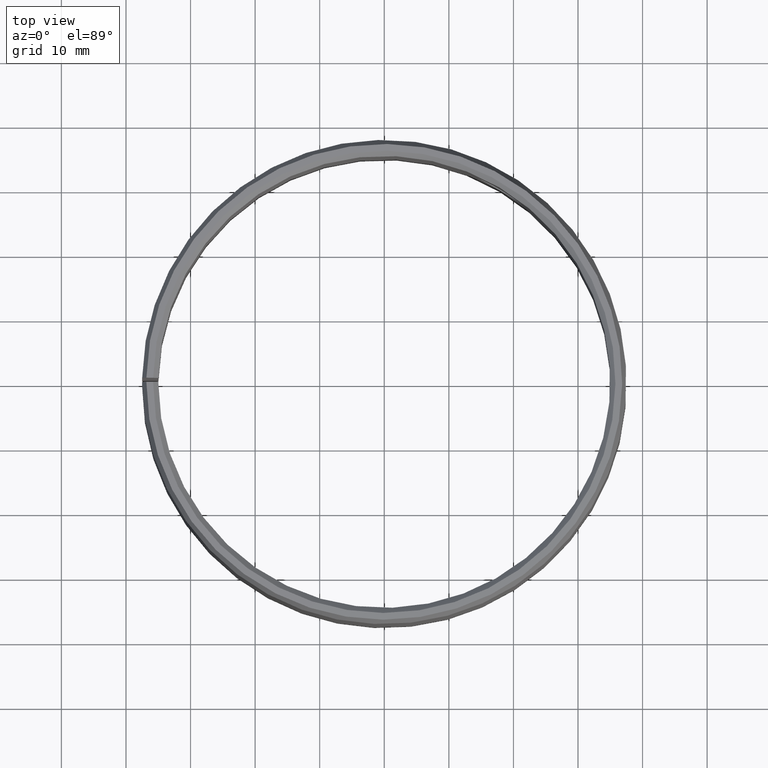
[diagram: clean part render]
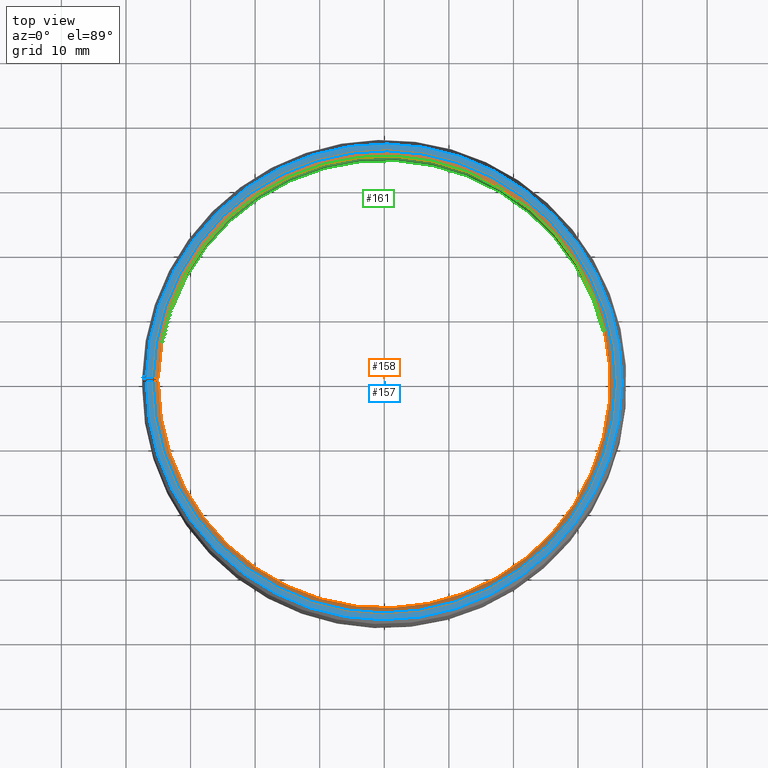
[diagram: same view with three faces highlighted in distinct colors, each labeled with its STEP entity id]
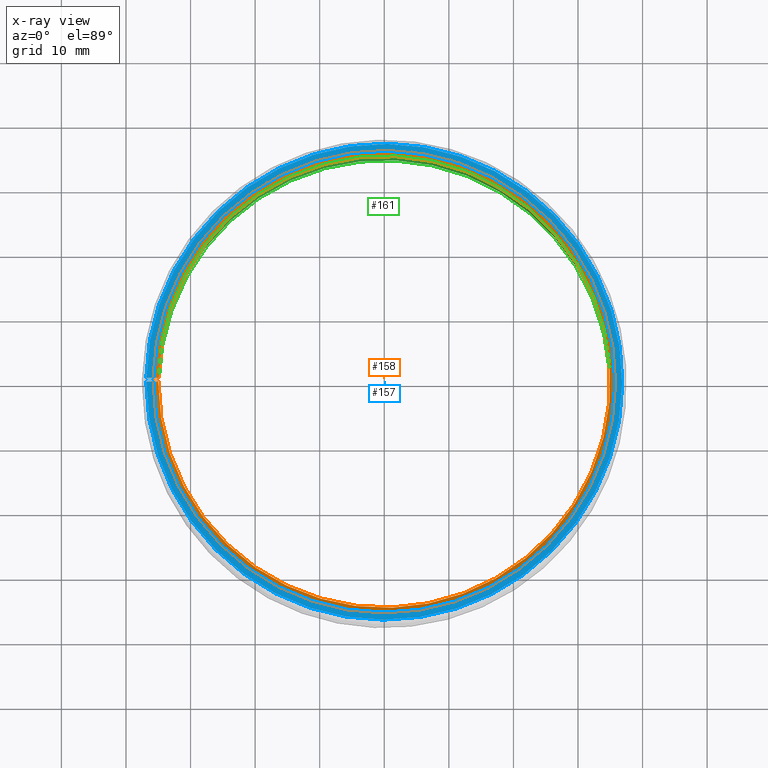
[diagram: x-ray of the same camera — body ghosted, the three highlighted faces saturated]
A machine part, top view with three faces highlighted in distinct colors.
The next image is the same camera in x-ray (body ghosted, the three faces saturated) — at least one of them is partly hidden behind the body in this view.
Their STEP definitions:

[orange] entity #158 — the highlighted conical surface has half-angle 45 deg.
#158=ADVANCED_FACE('',(#176),#177,.F.);
#176=FACE_OUTER_BOUND('',#202,.T.);
#177=CONICAL_SURFACE('',#203,0.0358,0.785398163397453);
#202=EDGE_LOOP('',(#252,#253,#254,#255));
#203=AXIS2_PLACEMENT_3D('',#256,#257,#258);
#252=ORIENTED_EDGE('',*,*,#319,.T.);
#253=ORIENTED_EDGE('',*,*,#320,.F.);
#254=ORIENTED_EDGE('',*,*,#317,.F.);
#255=ORIENTED_EDGE('',*,*,#321,.T.);
#256=CARTESIAN_POINT('',(-8.67361737988404E-018,-6.93889390390723E-018,0.04));
#257=DIRECTION('',(-6.12323399573677E-017,0.0,1.0));
#258=DIRECTION('',(1.0,0.0,6.12323399573677E-017));
#317=EDGE_CURVE('',#354,#356,#357,.T.);
#319=EDGE_CURVE('',#359,#360,#361,.T.);
#320=EDGE_CURVE('',#356,#360,#362,.T.);
#321=EDGE_CURVE('',#354,#359,#363,.T.);
#354=VERTEX_POINT('',#406);
#356=VERTEX_POINT('',#409);
#357=CIRCLE('',#410,0.0358);
#359=VERTEX_POINT('',#413);
#360=VERTEX_POINT('',#414);
#361=CIRCLE('',#415,0.035);
#362=LINE('',#416,#417);
#363=LINE('',#418,#419);
#406=CARTESIAN_POINT('',(0.000624796150454743,0.0357945474865988,0.04));
#409=CARTESIAN_POINT('',(-8.67361737988404E-018,0.0358,0.04));
#410=AXIS2_PLACEMENT_3D('',#589,#590,#591);
#413=CARTESIAN_POINT('',(0.000610834225304916,0.0349946693304737,0.0392));
#414=CARTESIAN_POINT('',(-8.67361737988404E-018,0.035,0.0392));
#415=AXIS2_PLACEMENT_3D('',#593,#594,#595);
#416=CARTESIAN_POINT('',(-8.67361737988404E-018,0.0358,0.04));
#417=VECTOR('',#596,1.0);
#418=CARTESIAN_POINT('',(0.000624796150454743,0.0357945474865988,0.04));
#419=VECTOR('',#597,1.0);
#589=CARTESIAN_POINT('',(-8.67361737988404E-018,-6.93889390390723E-018,0.04));
#590=DIRECTION('',(6.12323399573677E-017,0.0,-1.0));
#591=DIRECTION('',(-1.0,0.0,-6.12323399573677E-017));
#593=CARTESIAN_POINT('',(-8.67361737988404E-018,-6.93889390390723E-018,0.0392));
#594=DIRECTION('',(6.12323399573677E-017,0.0,-1.0));
#595=DIRECTION('',(-1.0,0.0,-6.12323399573677E-017));
#596=DIRECTION('',(0.0,-0.707106781186551,-0.707106781186545));
#597=DIRECTION('',(-0.012340714939827,-0.706999085398827,-0.707106781186545));

[blue] entity #157 — the highlighted planar face has unit normal (0, -0, 1).
#157=ADVANCED_FACE('',(#174),#175,.T.);
#174=FACE_OUTER_BOUND('',#200,.T.);
#175=PLANE('',#201);
#200=EDGE_LOOP('',(#245,#246,#247,#248));
#201=AXIS2_PLACEMENT_3D('',#249,#250,#251);
#245=ORIENTED_EDGE('',*,*,#316,.T.);
#246=ORIENTED_EDGE('',*,*,#317,.T.);
#247=ORIENTED_EDGE('',*,*,#318,.F.);
#248=ORIENTED_EDGE('',*,*,#312,.F.);
#249=CARTESIAN_POINT('',(0.000643031359771049,0.0368392419286588,0.04));
#250=DIRECTION('',(-6.12323399573677E-017,0.0,1.0));
#251=DIRECTION('',(1.0,0.0,6.12323399573677E-017));
#312=EDGE_CURVE('',#346,#347,#348,.T.);
#316=EDGE_CURVE('',#346,#354,#355,.T.);
#317=EDGE_CURVE('',#354,#356,#357,.T.);
#318=EDGE_CURVE('',#347,#356,#358,.T.);
#346=VERTEX_POINT('',#396);
#347=VERTEX_POINT('',#397);
#348=CIRCLE('',#398,0.0368448535783208);
#354=VERTEX_POINT('',#406);
#355=LINE('',#407,#408);
#356=VERTEX_POINT('',#409);
#357=CIRCLE('',#410,0.0358);
#358=LINE('',#411,#412);
#396=CARTESIAN_POINT('',(0.000643031359771049,0.0368392419286588,0.04));
#397=CARTESIAN_POINT('',(-8.67361737988404E-018,0.0368448535783208,0.04));
#398=AXIS2_PLACEMENT_3D('',#580,#581,#582);
#406=CARTESIAN_POINT('',(0.000624796150454743,0.0357945474865988,0.04));
#407=CARTESIAN_POINT('',(0.000643031359771049,0.0368392419286588,0.04));
#408=VECTOR('',#588,1.0);
#409=CARTESIAN_POINT('',(-8.67361737988404E-018,0.0358,0.04));
#410=AXIS2_PLACEMENT_3D('',#589,#590,#591);
#411=CARTESIAN_POINT('',(-8.67361737988404E-018,0.0368448535783208,0.04));
#412=VECTOR('',#592,1.0);
#580=CARTESIAN_POINT('',(-8.67361737988404E-018,-6.93889390390723E-018,0.04));
#581=DIRECTION('',(6.12323399573677E-017,0.0,-1.0));
#582=DIRECTION('',(-1.0,0.0,-6.12323399573677E-017));
#588=DIRECTION('',(-0.0174524064372836,-0.999847695156391,-1.0686516840419E-018));
#589=CARTESIAN_POINT('',(-8.67361737988404E-018,-6.93889390390723E-018,0.04));
#590=DIRECTION('',(6.12323399573677E-017,0.0,-1.0));
#591=DIRECTION('',(-1.0,0.0,-6.12323399573677E-017));
#592=DIRECTION('',(0.0,-1.0,0.0));

[green] entity #161 — the highlighted cylindrical surface (partial cylindrical patch) has radius 35 mm, axis along (-0, 0, -1).
#161=ADVANCED_FACE('',(#182,#183),#184,.F.);
#182=FACE_OUTER_BOUND('',#208,.T.);
#183=FACE_BOUND('',#209,.T.);
#184=CYLINDRICAL_SURFACE('',#210,0.035);
#208=EDGE_LOOP('',(#281,#282,#283,#284));
#209=EDGE_LOOP('',(#285));
#210=AXIS2_PLACEMENT_3D('',#286,#287,#288);
#281=ORIENTED_EDGE('',*,*,#304,.T.);
#282=ORIENTED_EDGE('',*,*,#322,.F.);
#283=ORIENTED_EDGE('',*,*,#319,.F.);
#284=ORIENTED_EDGE('',*,*,#325,.T.);
#285=ORIENTED_EDGE('',*,*,#326,.T.);
#286=CARTESIAN_POINT('',(-6.93889390390723E-018,-6.93889390390723E-018,0.0));
#287=DIRECTION('',(6.12323399573677E-017,0.0,-1.0));
#288=DIRECTION('',(-1.0,0.0,-6.12323399573677E-017));
#304=EDGE_CURVE('',#333,#331,#334,.T.);
#319=EDGE_CURVE('',#359,#360,#361,.T.);
#322=EDGE_CURVE('',#360,#331,#364,.T.);
#325=EDGE_CURVE('',#359,#333,#367,.T.);
#326=EDGE_CURVE('',#368,#368,#369,.T.);
#331=VERTEX_POINT('',#375);
#333=VERTEX_POINT('',#378);
#334=CIRCLE('',#379,0.035);
#359=VERTEX_POINT('',#413);
#360=VERTEX_POINT('',#414);
#361=CIRCLE('',#415,0.035);
#364=LINE('',#420,#421);
#367=LINE('',#426,#427);
#368=VERTEX_POINT('',#428);
#369=B_SPLINE_CURVE_WITH_KNOTS('',3,(#429,#430,#431,#432,#433,#434,#435,#436,#437,#438,#439,#440,#441,#442,#443,#444,#445,#446,#447,#448,#449,#450,#451,#452,#453,#454,#455,#456,#457,#458,#459,#460,#461,#462,#463,#464,#465,#466,#467,#468,#469,#470,#471,#472,#473,#474,#475,#476,#477,#478,#479,#480,#481,#482,#483,#484,#485,#486,#487,#488,#489,#490,#491,#492,#493,#494),.UNSPECIFIED.,.T.,.F.,(2,2,2,2,2,2,2,2,2,2,2,2,2,2,2,2,2,2,2,2,2,2,2,2,2,2,2,2,2,2,2,2,2,2,2),(-0.00078215963741945,0.0,0.00078215963741945,0.0015643192748389,0.00234647891225835,0.0031286385496778,0.00391079818709725,0.0046929578245167,0.00547511746193615,0.0062572770993556,0.00703943673677505,0.0078215963741945,0.00860375601161395,0.0093859156490334,0.0101680752864529,0.0109502349238723,0.0117323945612918,0.0125145541987112,0.0132967138361307,0.0140788734735501,0.0148610331109696,0.015643192748389,0.0164253523858085,0.0172075120232279,0.0179896716606474,0.0187718312980668,0.0195539909354863,0.0203361505729057,0.0211183102103252,0.0219004698477446,0.0226826294851641,0.0234647891225835,0.024246948760003,0.0250291083974224,0.0258112680348419),.UNSPECIFIED.);
#375=CARTESIAN_POINT('',(-6.93889390390723E-018,0.035,0.0008));
#378=CARTESIAN_POINT('',(0.000610834225304918,0.0349946693304737,0.0008));
#379=AXIS2_PLACEMENT_3D('',#566,#567,#568);
#413=CARTESIAN_POINT('',(0.000610834225304916,0.0349946693304737,0.0392));
#414=CARTESIAN_POINT('',(-8.67361737988404E-018,0.035,0.0392));
#415=AXIS2_PLACEMENT_3D('',#593,#594,#595);
#420=CARTESIAN_POINT('',(-8.67361737988404E-018,0.035,0.0392));
#421=VECTOR('',#598,1.0);
#426=CARTESIAN_POINT('',(0.000610834225304916,0.0349946693304737,0.0392));
#427=VECTOR('',#601,1.0);
#428=CARTESIAN_POINT('',(0.0277441353064831,-0.0213368919033574,0.02));
#429=CARTESIAN_POINT('',(0.0277441353064831,-0.0213368919033574,0.0202644906927151));
#430=CARTESIAN_POINT('',(0.0277441353064831,-0.0213368919033574,0.0197355093072849));
#431=CARTESIAN_POINT('',(0.0277600983842469,-0.0213161806618129,0.0194754819844249));
#432=CARTESIAN_POINT('',(0.0278223311044548,-0.0212348890325379,0.0189639755608542));
#433=CARTESIAN_POINT('',(0.0278693610342522,-0.0211733066380689,0.0187098295213955));
#434=CARTESIAN_POINT('',(0.0279910809169324,-0.021012129533889,0.0182255319587692));
#435=CARTESIAN_POINT('',(0.0280651880822234,-0.0209133085161592,0.0179958699971985));
#436=CARTESIAN_POINT('',(0.0282384388133713,-0.020678777250266,0.0175612259001021));
#437=CARTESIAN_POINT('',(0.0283383934748921,-0.0205419002704432,0.0173556012914139));
#438=CARTESIAN_POINT('',(0.02855391886955,-0.0202412432585007,0.0169869602959644));
#439=CARTESIAN_POINT('',(0.028670294028316,-0.0200764093236153,0.0168214607735883));
#440=CARTESIAN_POINT('',(0.028919306931437,-0.0197160254007945,0.0165290385253244));
#441=CARTESIAN_POINT('',(0.02904994674816,-0.0195232834468024,0.0164049056620229));
#442=CARTESIAN_POINT('',(0.0293158651970227,-0.0191216644245504,0.0162053440501078));
#443=CARTESIAN_POINT('',(0.0294531105683948,-0.0189098118518584,0.0161284413093861));
#444=CARTESIAN_POINT('',(0.0297289706066316,-0.0184730888888893,0.0160256053084662));
#445=CARTESIAN_POINT('',(0.0298652300578896,-0.0182520192301727,0.0160001445404196));
#446=CARTESIAN_POINT('',(0.0301342095209678,-0.0178044261052043,0.0159998566751225));
#447=CARTESIAN_POINT('',(0.0302682472143654,-0.0175755249961741,0.0160258678987317));
#448=CARTESIAN_POINT('',(0.0305227343440561,-0.0171297564630457,0.0161279921359165));
#449=CARTESIAN_POINT('',(0.0306440185849767,-0.0169116212311517,0.0162035516361826));
#450=CARTESIAN_POINT('',(0.0308754149105193,-0.0164853741785141,0.0164039925858847));
#451=CARTESIAN_POINT('',(0.0309849322496476,-0.0162782395335752,0.0165291432583467));
#452=CARTESIAN_POINT('',(0.0311844341150744,-0.015892708320179,0.0168185282115646));
#453=CARTESIAN_POINT('',(0.0312757662340601,-0.01571182817499,0.0169838429697968));
#454=CARTESIAN_POINT('',(0.0314421710728443,-0.0153761170766217,0.0173570050418436));
#455=CARTESIAN_POINT('',(0.0315145773865522,-0.015226706413688,0.0175588058894702));
#456=CARTESIAN_POINT('',(0.0316401022214241,-0.0149641273544256,0.0179917156731102));
#457=CARTESIAN_POINT('',(0.0316936382480192,-0.0148500333920537,0.0182255927290533));
#458=CARTESIAN_POINT('',(0.0317787995870508,-0.0146669047159745,0.0187098798235816));
#459=CARTESIAN_POINT('',(0.0318105720758687,-0.0145976082845992,0.0189591979092412));
#460=CARTESIAN_POINT('',(0.0318534827348088,-0.0145037340394767,0.0194721119193354));
#461=CARTESIAN_POINT('',(0.031864399348708,-0.0144796427495852,0.019737370934648));
#462=CARTESIAN_POINT('',(0.0318644802324,-0.0144794647528335,0.0202596539556129));
#463=CARTESIAN_POINT('',(0.0318539986643011,-0.0145026004772564,0.0205193448436002));
#464=CARTESIAN_POINT('',(0.0318111877485112,-0.0145962661505327,0.0210357574848917));
#465=CARTESIAN_POINT('',(0.0317790205520535,-0.0146664202653689,0.0212882392743809));
#466=CARTESIAN_POINT('',(0.0316945643661027,-0.0148480510603658,0.021769756640545));
#467=CARTESIAN_POINT('',(0.0316416254080515,-0.0149609173953919,0.0220024848245645));
#468=CARTESIAN_POINT('',(0.0315151395280451,-0.0152255537929839,0.0224397928113926));
#469=CARTESIAN_POINT('',(0.031442743116787,-0.01537491647091,0.0226411636416769));
#470=CARTESIAN_POINT('',(0.0312786350490673,-0.015706086102622,0.0230102608636175));
#471=CARTESIAN_POINT('',(0.0311857841710337,-0.015890066216429,0.0231792633258152));
#472=CARTESIAN_POINT('',(0.0309858230222375,-0.0162765509356059,0.0234698120113534));
#473=CARTESIAN_POINT('',(0.0308784066662397,-0.0164797664315252,0.0235928701781512));
#474=CARTESIAN_POINT('',(0.0306473026034012,-0.0169056660034101,0.0237941347632759));
#475=CARTESIAN_POINT('',(0.0305237845012044,-0.0171278716129492,0.0238713701850978));
#476=CARTESIAN_POINT('',(0.030270230363101,-0.0175720960625201,0.0239735499605158));
#477=CARTESIAN_POINT('',(0.0301389306104832,-0.0177964823292215,0.0239997532188342));
#478=CARTESIAN_POINT('',(0.0298665986807109,-0.0182498275302308,0.0240002433455477));
#479=CARTESIAN_POINT('',(0.0297300346546583,-0.0184713428697725,0.0239744975052916));
#480=CARTESIAN_POINT('',(0.0294568024214224,-0.0189040275889865,0.0238732237264552));
#481=CARTESIAN_POINT('',(0.029318586542389,-0.019117512662649,0.0237964581524256));
#482=CARTESIAN_POINT('',(0.0290508681064211,-0.0195219330373154,0.0235960226002772));
#483=CARTESIAN_POINT('',(0.0289217512047738,-0.0197124271220377,0.0234733430100601));
#484=CARTESIAN_POINT('',(0.0286740830921163,-0.0200709848940925,0.0231834655030852));
#485=CARTESIAN_POINT('',(0.0285551077616006,-0.0202395671901665,0.0230148369348366));
#486=CARTESIAN_POINT('',(0.028339448207903,-0.0205404463095004,0.0226464365940402));
#487=CARTESIAN_POINT('',(0.0282413636567559,-0.0206747915524752,0.0224453571951132));
#488=CARTESIAN_POINT('',(0.0280666292693263,-0.0209113832251631,0.0220084815747806));
#489=CARTESIAN_POINT('',(0.0279916315437783,-0.0210113939270624,0.0217760725134221));
#490=CARTESIAN_POINT('',(0.0278704393857014,-0.0211718851236441,0.021295039528163));
#491=CARTESIAN_POINT('',(0.0278233832925275,-0.0212335124682107,0.0210431791992438));
#492=CARTESIAN_POINT('',(0.0277601014081443,-0.0213161788177455,0.0205260115442673));
#493=CARTESIAN_POINT('',(0.0277441353064831,-0.0213368919033574,0.0202644906927151));
#494=CARTESIAN_POINT('',(0.0277441353064831,-0.0213368919033574,0.0197355093072849));
#566=CARTESIAN_POINT('',(-6.93889390390723E-018,-6.93889390390723E-018,0.0008));
#567=DIRECTION('',(6.12323399573677E-017,0.0,-1.0));
#568=DIRECTION('',(-1.0,0.0,-6.12323399573677E-017));
#593=CARTESIAN_POINT('',(-8.67361737988404E-018,-6.93889390390723E-018,0.0392));
#594=DIRECTION('',(6.12323399573677E-017,0.0,-1.0));
#595=DIRECTION('',(-1.0,0.0,-6.12323399573677E-017));
#598=DIRECTION('',(4.51750905202293E-017,0.0,-1.0));
#601=DIRECTION('',(4.51775361170937E-017,2.8023764344178E-019,-1.0));